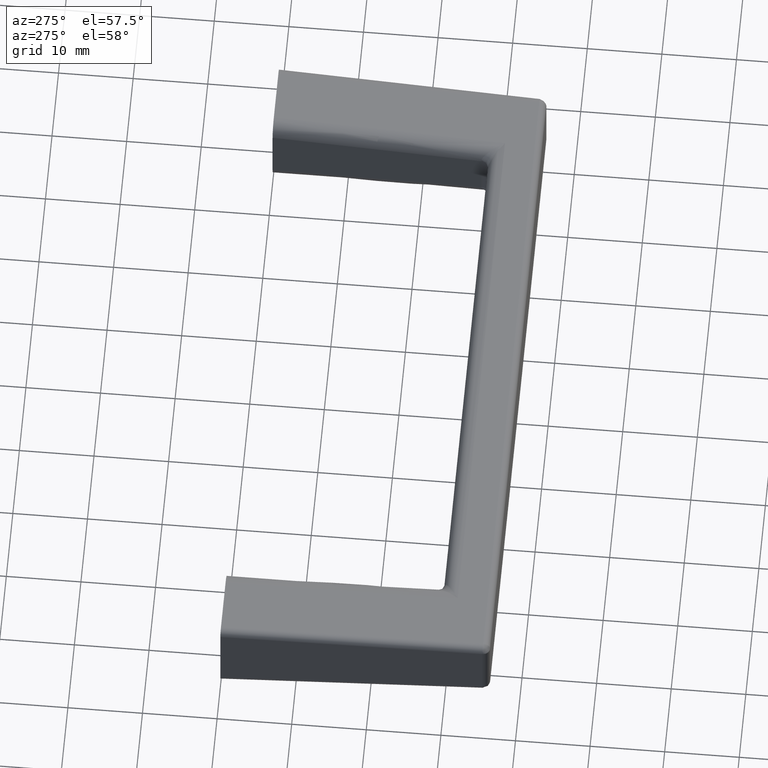
[diagram: clean part render]
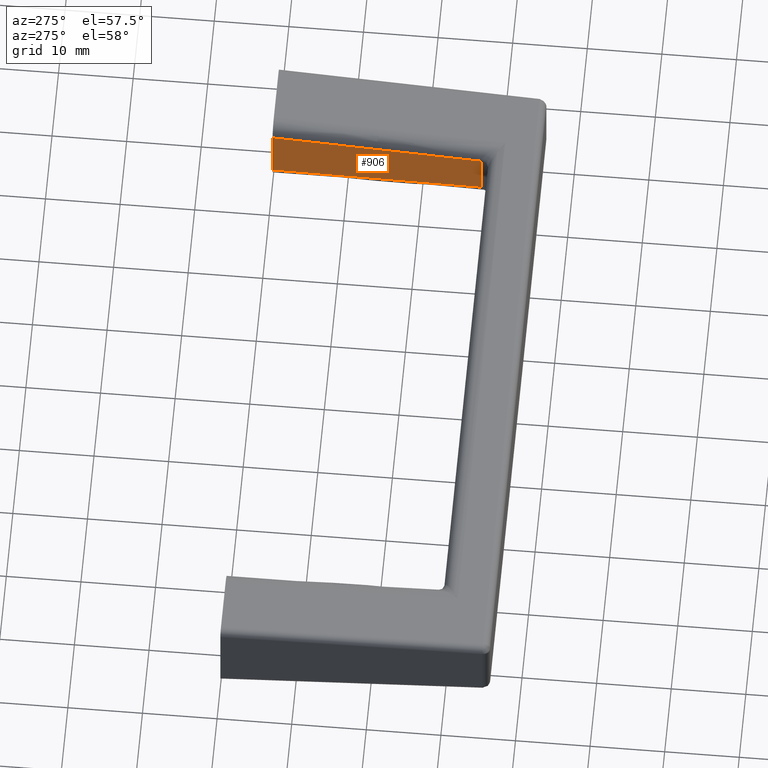
[diagram: same view with one face highlighted and labeled with its STEP entity id]
A machine part, auxiliary view. The second image highlights one B-rep face of the part: STEP entity #906.
In plain terms, the highlighted face is a freeform B-spline surface patch.
Its self-contained STEP definition (entity closure, byte-faithful):
#737=CARTESIAN_POINT('',(34.999600000000001,0.0,3.997686035306370));
#738=VERTEX_POINT('',#737);
#739=CARTESIAN_POINT('',(34.999600000000001,0.0,-3.997686035306370));
#740=VERTEX_POINT('',#739);
#741=CARTESIAN_POINT('',(34.999600000000001,0.0,3.997686035306370));
#742=CARTESIAN_POINT('',(34.999600000000001,0.0,-3.997686035306370));
#743=QUASI_UNIFORM_CURVE('',1,(#741,#742),.UNSPECIFIED.,.F.,.U.);
#744=EDGE_CURVE('',#738,#740,#743,.T.);
#865=CARTESIAN_POINT('',(34.182186932975704,-29.428899992186171,-4.397054854736894));
#866=CARTESIAN_POINT('',(35.038487378554827,1.400042182607689,-4.397054854736894));
#867=CARTESIAN_POINT('',(34.182186932975704,-29.428899992186171,4.397055069189484));
#868=CARTESIAN_POINT('',(35.038487378554827,1.400042182607689,4.397055069189484));
#869=B_SPLINE_SURFACE_WITH_KNOTS('',1,1,((#865,#867),(#866,#868)),.UNSPECIFIED.,.F.,.F.,.U.,(2,2),(2,2),(0.0,30.840832123499560),(0.0,8.794109923926378),.UNSPECIFIED.);
#870=CARTESIAN_POINT('',(34.221104660988253,-28.027765153746500,-3.138117432736760));
#871=VERTEX_POINT('',#870);
#872=CARTESIAN_POINT('',(34.221104660988253,-28.027765153746500,3.138117432736730));
#873=VERTEX_POINT('',#872);
#874=CARTESIAN_POINT('',(34.221104660988253,-28.027765153746500,-3.138117432736760));
#875=CARTESIAN_POINT('',(34.221104660988253,-28.027765153746500,3.138117432736730));
#876=QUASI_UNIFORM_CURVE('',1,(#874,#875),.UNSPECIFIED.,.F.,.U.);
#877=EDGE_CURVE('',#871,#873,#876,.T.);
#878=ORIENTED_EDGE('',*,*,#877,.T.);
#879=CARTESIAN_POINT('',(34.221074290648900,-28.028858561371049,3.219106630823735));
#880=VERTEX_POINT('',#879);
#881=CARTESIAN_POINT('',(34.221104660988253,-28.027765153746500,3.138117432736730));
#882=CARTESIAN_POINT('',(34.221074290648900,-28.028858561371049,3.219106630823735));
#883=QUASI_UNIFORM_CURVE('',1,(#881,#882),.UNSPECIFIED.,.F.,.U.);
#884=EDGE_CURVE('',#873,#880,#883,.T.);
#885=ORIENTED_EDGE('',*,*,#884,.T.);
#886=CARTESIAN_POINT('',(34.221074290648900,-28.028858561371049,3.219106630823735));
#887=CARTESIAN_POINT('',(34.999600000000001,0.0,3.997686035306370));
#888=QUASI_UNIFORM_CURVE('',1,(#886,#887),.UNSPECIFIED.,.F.,.U.);
#889=EDGE_CURVE('',#880,#738,#888,.T.);
#890=ORIENTED_EDGE('',*,*,#889,.T.);
#891=ORIENTED_EDGE('',*,*,#744,.T.);
#892=CARTESIAN_POINT('',(34.221074290648851,-28.028858561370999,-3.219106630823870));
#893=VERTEX_POINT('',#892);
#894=CARTESIAN_POINT('',(34.999600000000001,0.0,-3.997686035306370));
#895=CARTESIAN_POINT('',(34.221074290648851,-28.028858561370999,-3.219106630823870));
#896=QUASI_UNIFORM_CURVE('',1,(#894,#895),.UNSPECIFIED.,.F.,.U.);
#897=EDGE_CURVE('',#740,#893,#896,.T.);
#898=ORIENTED_EDGE('',*,*,#897,.T.);
#899=CARTESIAN_POINT('',(34.221074290648851,-28.028858561370999,-3.219106630823870));
#900=CARTESIAN_POINT('',(34.221104660988253,-28.027765153746500,-3.138117432736760));
#901=QUASI_UNIFORM_CURVE('',1,(#899,#900),.UNSPECIFIED.,.F.,.U.);
#902=EDGE_CURVE('',#893,#871,#901,.T.);
#903=ORIENTED_EDGE('',*,*,#902,.T.);
#904=EDGE_LOOP('',(#878,#885,#890,#891,#898,#903));
#905=FACE_OUTER_BOUND('',#904,.T.);
#906=ADVANCED_FACE('',(#905),#869,.F.);